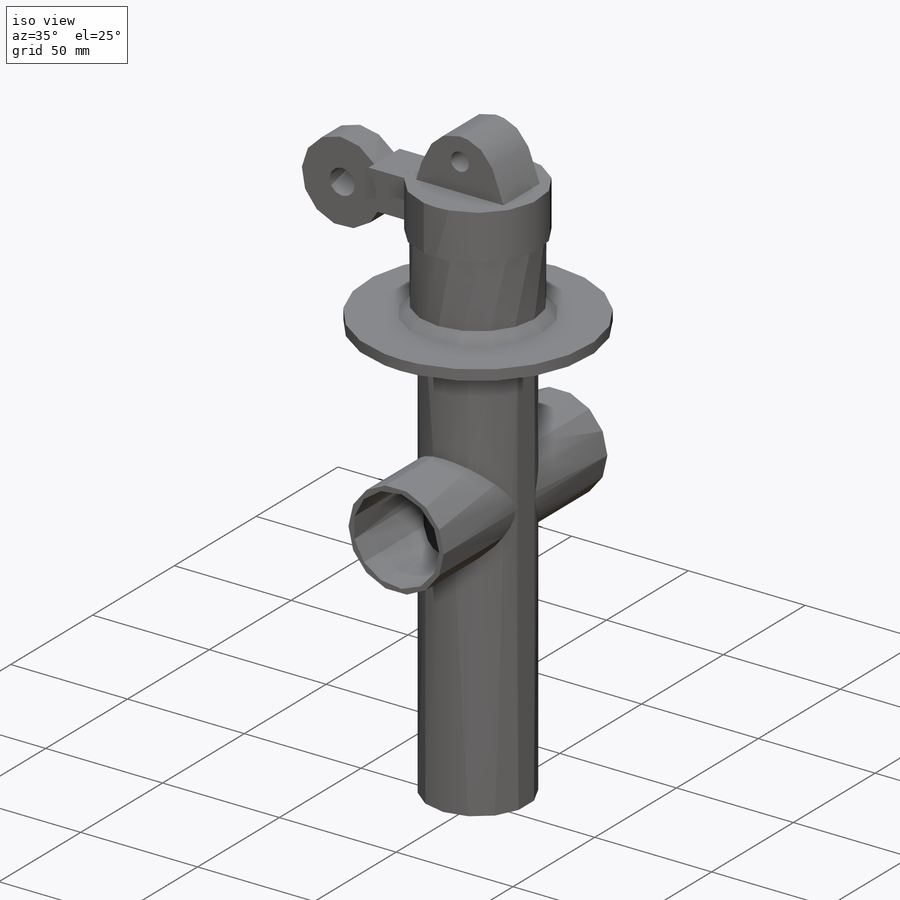
[diagram: iso view]
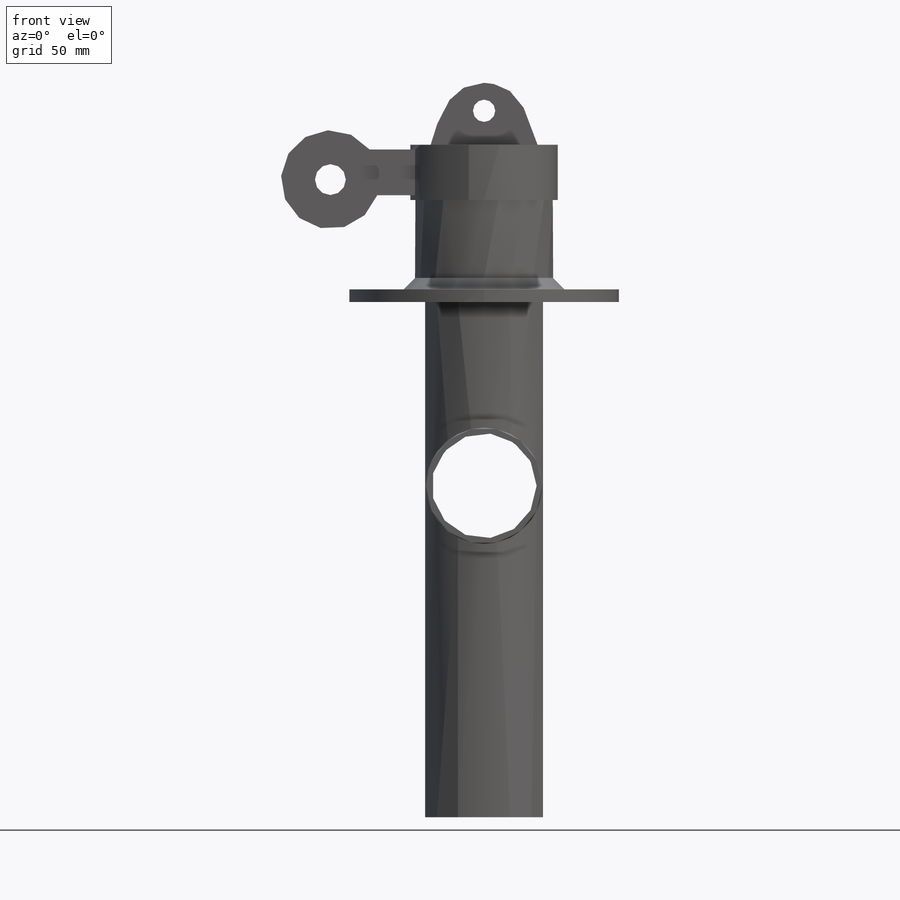
[diagram: front view]
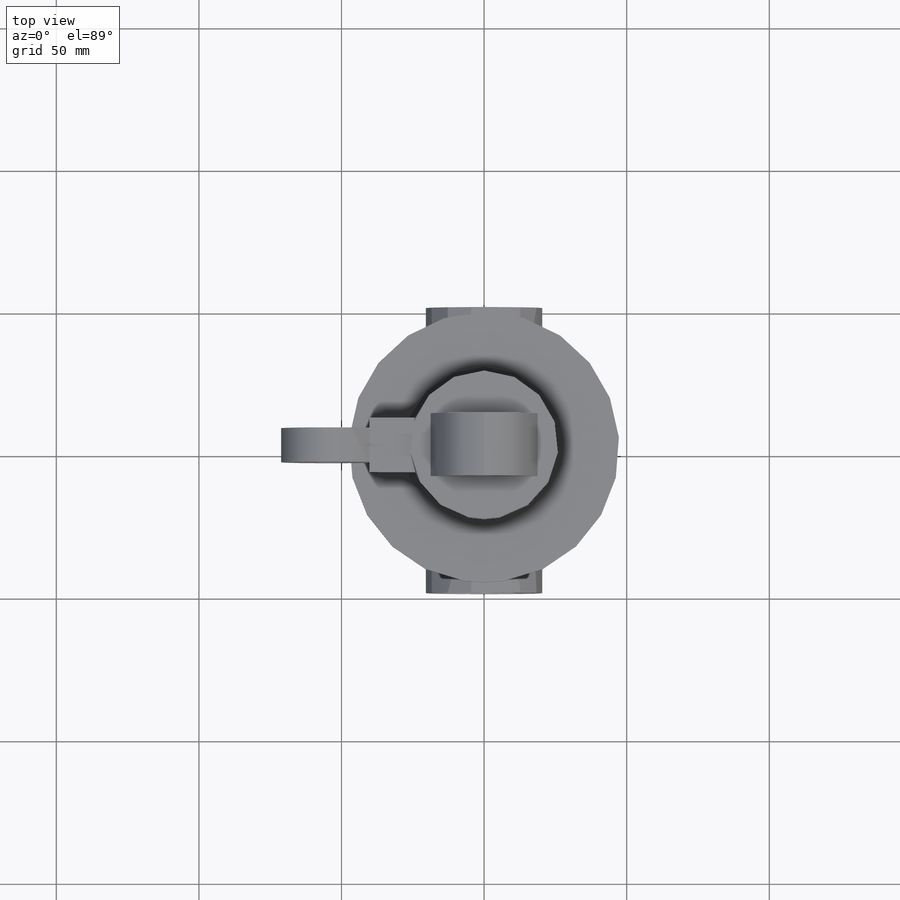
[diagram: top view]
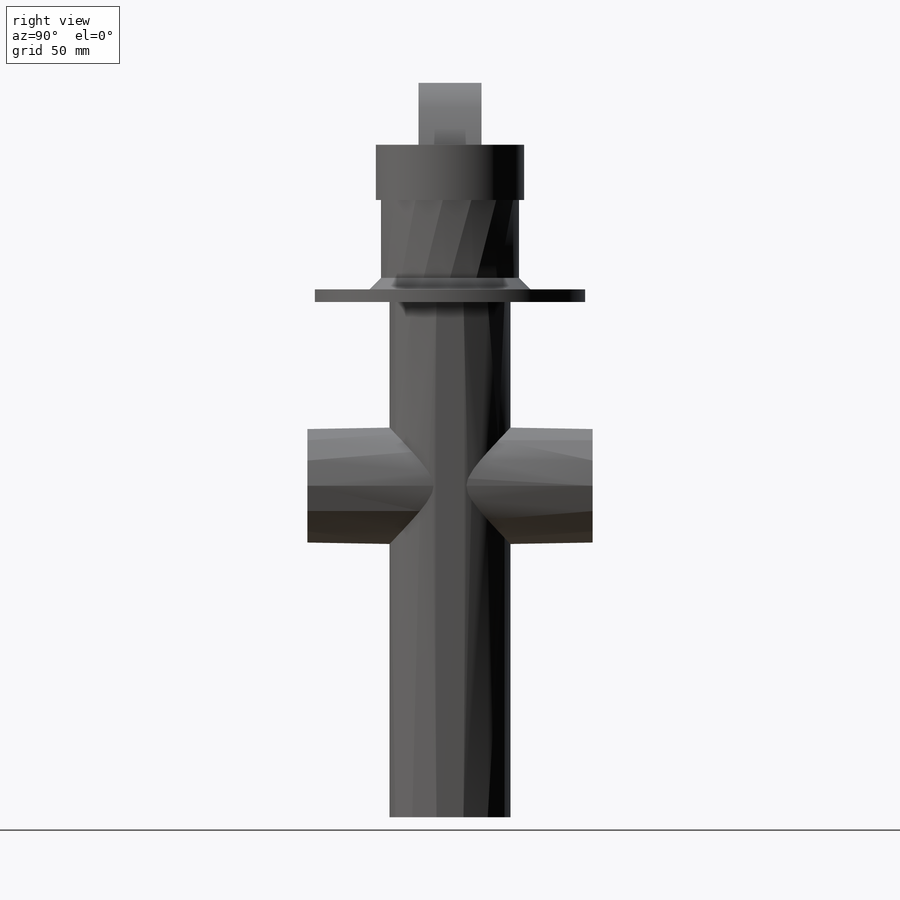
[diagram: right view]
SOLIDWORKS PART (.sldprt)
format: sldprt  version: not decoded by parser v0  size: 3,646,976 bytes
history: native  units: mm
features: sketch x11, extrude x8, plane x2, material x1, shell x1, chamfer x1, cut_extrude x1 (+13 scaffold rows collapsed)
feature tree (38):
  scaffold x13  (default folders/planes/origin — collapsed)
  material  "Material <not specified>"
  plane  "Plane1"  Offset=1mm
  plane  "Plane2"  Offset=10mm
  sketch  "Sketch2"  dims[D1=22.5mm D2=22.5mm]
  sketch  "Sketch6"  dims[c1.D1=~42.395822mm c1.D2=~180.647627mm c1.D3=~31.309755mm c1.D4=~51.966766mm c1.D5=~94.760928mm c1.D6=~5.196677mm c1.D7=~19.395214mm c2.D6=~48.428638mm c2.D8=~4.431169mm c2.D9=~9.476093mm]
  sketch  "Sketch7"
  extrude  "Boss-Extrude1"  [1 undecoded]
  sketch  "Sketch12"
  extrude  "Boss-Extrude6"  Depth=100mm
  shell  "Shell1"  Thickness=2mm
  sketch  "Sketch8"
  extrude  "Boss-Extrude2"  [1 undecoded]
  sketch  "Sketch9"
  extrude  "Boss-Extrude3"  [1 undecoded]
  sketch  "Sketch10"
  extrude  "Boss-Extrude4"  [1 undecoded]
  chamfer  "Chamfer1"  Distance=4mm Angle=45deg
  sketch  "Sketch11"  dims[c1.D1=7.8194mm c1.D2=7.8194mm c2.D1=~2.375371mm]
  extrude  "Boss-Extrude5"  Depth=22.1mm
  sketch  "Sketch13"
  extrude  "Boss-Extrude7"  Depth=52mm
  sketch  "Sketch14"
  cut_extrude  "Cut-Extrude1"  Depth=52mm
  extrude  "Boss-Extrude9"  [1 undecoded]
  sketch  "Sketch14<5>"  dims[D1=12.0mm]
decode coverage: 10 of 22 modeling features carry decoded parameters
note: ~ marks probable driven/reference dimensions
note: 5 parameter values undecoded
summary: no parameter record found for 5 features
note: suppression state not decoded; provenance and decode notes live in map.json
